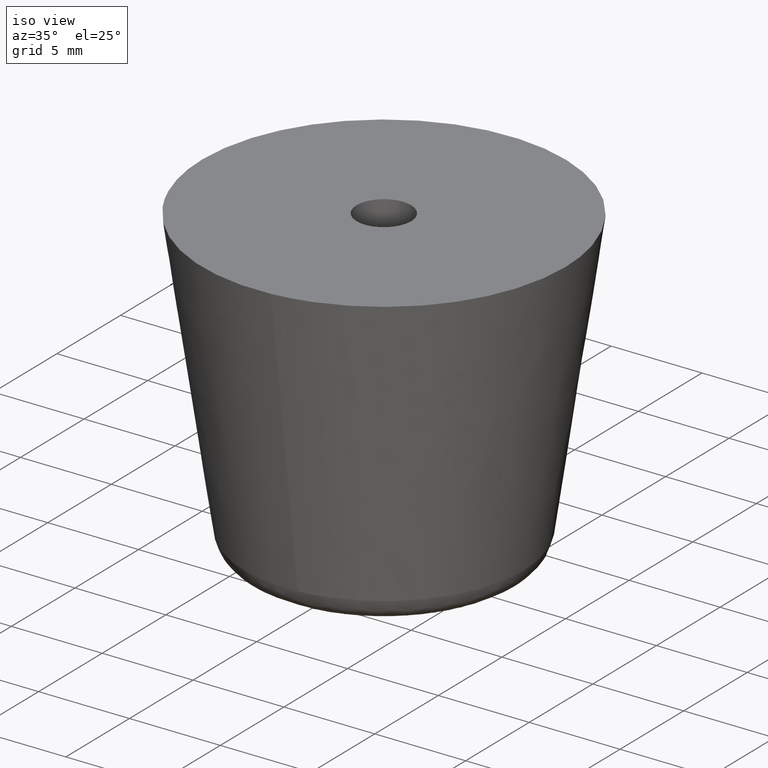
[diagram: clean part render]
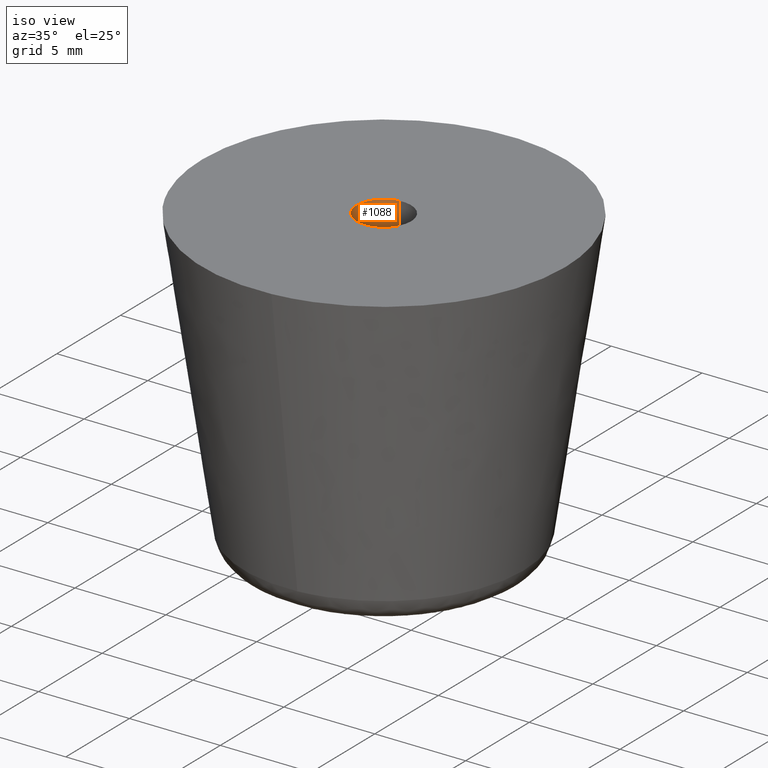
[diagram: same view with one face highlighted and labeled with its STEP entity id]
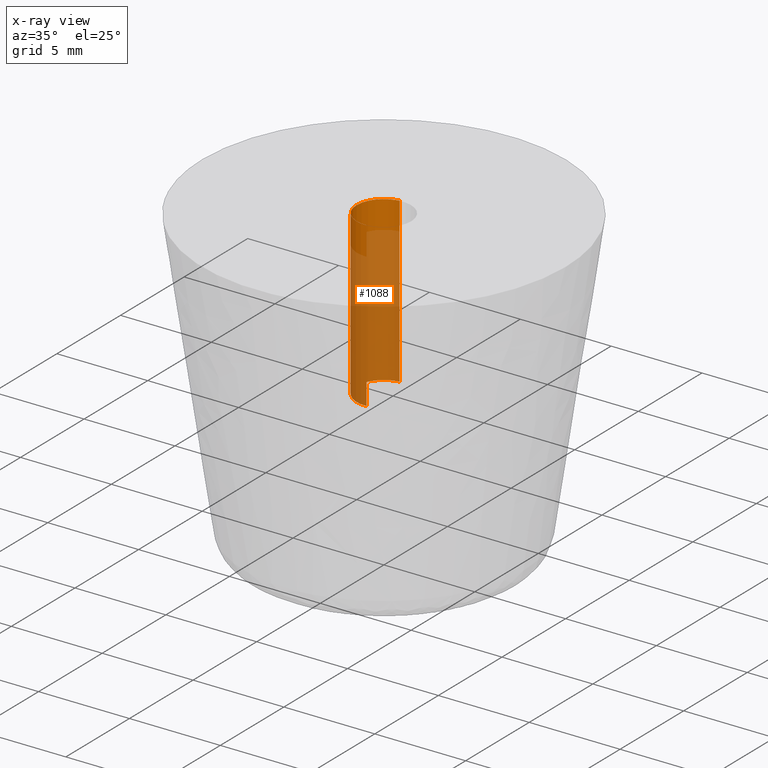
[diagram: x-ray of the same camera — body ghosted, the highlighted face saturated]
A machine part, iso view. The second image highlights one B-rep face of the part: STEP entity #1088.
The next image is the same camera in x-ray: the body ghosted, the highlighted face saturated — about 80% of this face is hidden behind the body in this view.
In plain terms, the highlighted face is a freeform B-spline surface patch.
Its self-contained STEP definition (entity closure, byte-faithful):
#925=CARTESIAN_POINT('',(-0.177051352012515,1.489514289542246,17.0));
#926=VERTEX_POINT('',#925);
#944=CARTESIAN_POINT('',(-0.177051352012514,1.489514289542246,7.999999999999900));
#945=VERTEX_POINT('',#944);
#946=CARTESIAN_POINT('',(-0.177051352012515,1.489514289542246,17.0));
#947=CARTESIAN_POINT('',(-0.177051352012514,1.489514289542246,7.999999999999900));
#948=QUASI_UNIFORM_CURVE('',1,(#946,#947),.UNSPECIFIED.,.F.,.U.);
#949=EDGE_CURVE('',#926,#945,#948,.T.);
#968=CARTESIAN_POINT('',(0.091572809335385,-1.497202197630776,7.999999999999899));
#969=VERTEX_POINT('',#968);
#983=CARTESIAN_POINT('',(0.091572809335385,-1.497202197630776,17.0));
#984=VERTEX_POINT('',#983);
#985=CARTESIAN_POINT('',(0.091572809335385,-1.497202197630776,17.0));
#986=CARTESIAN_POINT('',(0.091572809335385,-1.497202197630776,7.999999999999899));
#987=QUASI_UNIFORM_CURVE('',1,(#985,#986),.UNSPECIFIED.,.F.,.U.);
#988=EDGE_CURVE('',#984,#969,#987,.T.);
#1006=CARTESIAN_POINT('',(0.091572809302285,-1.497202197632800,17.225000000000009));
#1007=CARTESIAN_POINT('',(-1.405629388330515,-1.588775006935085,17.225000000000012));
#1008=CARTESIAN_POINT('',(-1.497202197632800,-0.091572809302285,17.225000000000009));
#1009=CARTESIAN_POINT('',(-1.583679295098791,1.322315236259252,17.225000000000012));
#1010=CARTESIAN_POINT('',(-0.177051351985138,1.489514289545500,17.225000000000012));
#1011=CARTESIAN_POINT('',(0.091572809302285,-1.497202197632800,7.769374999999897));
#1012=CARTESIAN_POINT('',(-1.405629388330515,-1.588775006935085,7.769374999999897));
#1013=CARTESIAN_POINT('',(-1.497202197632800,-0.091572809302285,7.769374999999897));
#1014=CARTESIAN_POINT('',(-1.583679295098791,1.322315236259252,7.769374999999896));
#1015=CARTESIAN_POINT('',(-0.177051351985138,1.489514289545500,7.769374999999898));
#1023=(BOUNDED_SURFACE()B_SPLINE_SURFACE(2,1,((#1006,#1011),(#1007,#1012),(#1008,#1013),(#1009,#1014),(#1010,#1015)),.UNSPECIFIED.,.F.,.F.,.U.)B_SPLINE_SURFACE_WITH_KNOTS((3,2,3),(2,2),(0.0,1.570796326794897,3.078760800517997),(0.0,9.455625000000113),.UNSPECIFIED.)GEOMETRIC_REPRESENTATION_ITEM()RATIONAL_B_SPLINE_SURFACE(((1.0,1.0),(0.707106781186548,0.707106781186548),(1.0,1.0),(0.718822509939086,0.718822509939086),(0.977505800795127,0.977505800795127)))REPRESENTATION_ITEM('')SURFACE());
#1024=CARTESIAN_POINT('',(-1.500000000000000,0.0,17.0));
#1025=VERTEX_POINT('',#1024);
#1026=CARTESIAN_POINT('',(-1.500000000000000,0.0,17.0));
#1027=CARTESIAN_POINT('',(-1.500000000000000,1.332261788877733,16.999999999999989));
#1028=CARTESIAN_POINT('',(-0.177051352012515,1.489514289542246,17.0));
#1036=(BOUNDED_CURVE()B_SPLINE_CURVE(2,(#1026,#1027,#1028),.UNSPECIFIED.,.F.,.U.)B_SPLINE_CURVE_WITH_KNOTS((3,3),(0.0,0.229562473509432),.UNSPECIFIED.)CURVE()GEOMETRIC_REPRESENTATION_ITEM()RATIONAL_B_SPLINE_CURVE((1.0,0.731050832860179,0.956026754175709))REPRESENTATION_ITEM(''));
#1037=EDGE_CURVE('',#1025,#926,#1036,.T.);
#1038=ORIENTED_EDGE('',*,*,#1037,.F.);
#1039=CARTESIAN_POINT('',(0.091572809335385,-1.497202197630776,17.0));
#1040=CARTESIAN_POINT('',(0.045829144981075,-1.500000000000000,17.000000000000007));
#1041=CARTESIAN_POINT('',(0.0,-1.500000000000000,17.0));
#1042=CARTESIAN_POINT('',(-1.500000000000000,-1.500000000000000,17.000000000000004));
#1043=CARTESIAN_POINT('',(-1.500000000000000,0.0,17.0));
#1051=(BOUNDED_CURVE()B_SPLINE_CURVE(2,(#1039,#1040,#1041,#1042,#1043),.UNSPECIFIED.,.F.,.U.)B_SPLINE_CURVE_WITH_KNOTS((3,2,3),(0.739332962234339,0.750000000000000,1.0),.UNSPECIFIED.)CURVE()GEOMETRIC_REPRESENTATION_ITEM()RATIONAL_B_SPLINE_CURVE((0.976072041656851,0.987502787894444,1.0,0.707106781186548,1.0))REPRESENTATION_ITEM(''));
#1052=EDGE_CURVE('',#984,#1025,#1051,.T.);
#1053=ORIENTED_EDGE('',*,*,#1052,.F.);
#1054=ORIENTED_EDGE('',*,*,#988,.T.);
#1055=CARTESIAN_POINT('',(-1.500000000000000,0.0,7.999999999999900));
#1056=VERTEX_POINT('',#1055);
#1057=CARTESIAN_POINT('',(0.091572809335385,-1.497202197630776,7.999999999999900));
#1058=CARTESIAN_POINT('',(0.045829144981075,-1.500000000000000,7.999999999999901));
#1059=CARTESIAN_POINT('',(0.0,-1.500000000000000,7.999999999999900));
#1060=CARTESIAN_POINT('',(-1.500000000000000,-1.500000000000000,7.999999999999901));
#1061=CARTESIAN_POINT('',(-1.500000000000000,0.0,7.999999999999900));
#1069=(BOUNDED_CURVE()B_SPLINE_CURVE(2,(#1057,#1058,#1059,#1060,#1061),.UNSPECIFIED.,.F.,.U.)B_SPLINE_CURVE_WITH_KNOTS((3,2,3),(0.739332962234339,0.750000000000000,1.0),.UNSPECIFIED.)CURVE()GEOMETRIC_REPRESENTATION_ITEM()RATIONAL_B_SPLINE_CURVE((0.976072041656851,0.987502787894444,1.0,0.707106781186548,1.0))REPRESENTATION_ITEM(''));
#1070=EDGE_CURVE('',#969,#1056,#1069,.T.);
#1071=ORIENTED_EDGE('',*,*,#1070,.T.);
#1072=CARTESIAN_POINT('',(-1.500000000000000,0.0,7.999999999999900));
#1073=CARTESIAN_POINT('',(-1.500000000000001,1.332261788877735,7.999999999999899));
#1074=CARTESIAN_POINT('',(-0.177051352012514,1.489514289542246,7.999999999999900));
#1082=(BOUNDED_CURVE()B_SPLINE_CURVE(2,(#1072,#1073,#1074),.UNSPECIFIED.,.F.,.U.)B_SPLINE_CURVE_WITH_KNOTS((3,3),(0.0,0.229562473509432),.UNSPECIFIED.)CURVE()GEOMETRIC_REPRESENTATION_ITEM()RATIONAL_B_SPLINE_CURVE((1.0,0.731050832860178,0.956026754175709))REPRESENTATION_ITEM(''));
#1083=EDGE_CURVE('',#1056,#945,#1082,.T.);
#1084=ORIENTED_EDGE('',*,*,#1083,.T.);
#1085=ORIENTED_EDGE('',*,*,#949,.F.);
#1086=EDGE_LOOP('',(#1038,#1053,#1054,#1071,#1084,#1085));
#1087=FACE_OUTER_BOUND('',#1086,.T.);
#1088=ADVANCED_FACE('',(#1087),#1023,.F.);